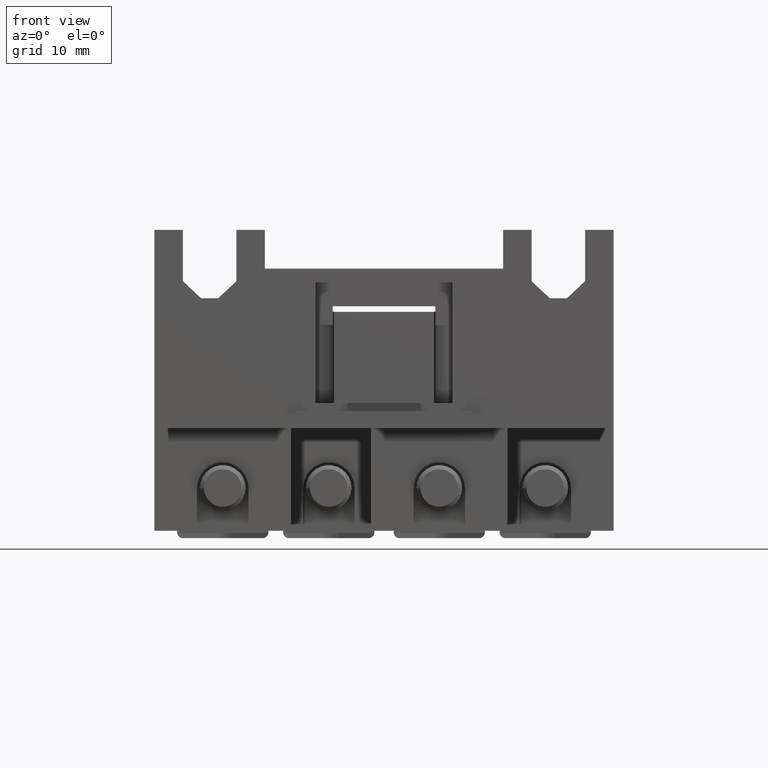
[diagram: clean part render]
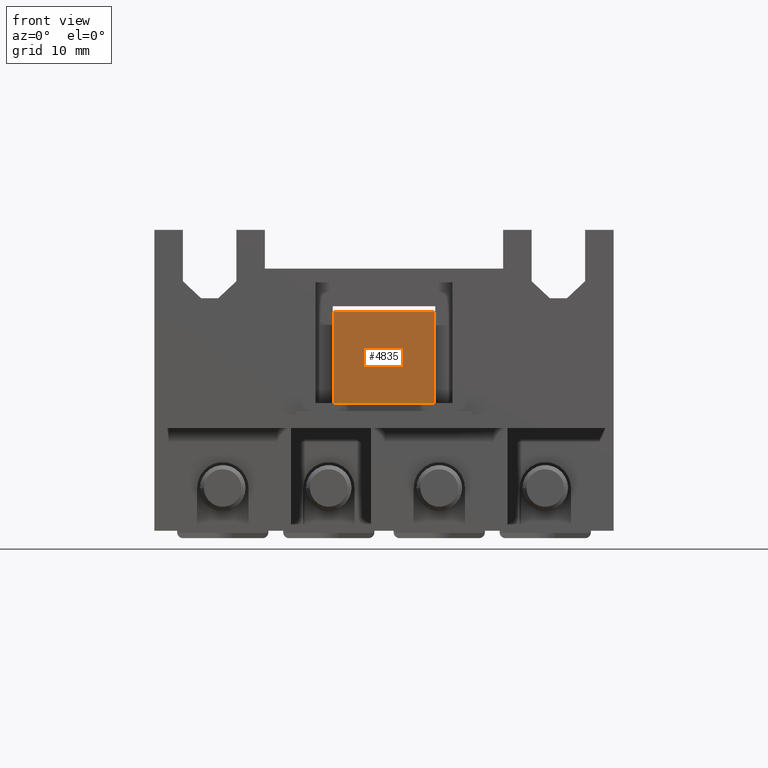
[diagram: same view with one face highlighted and labeled with its STEP entity id]
A machine part, front view. The second image highlights one B-rep face of the part: STEP entity #4835.
In plain terms, the highlighted planar face has unit normal (-0, 1, -0).
Its self-contained STEP definition (entity closure, byte-faithful):
#4726=CARTESIAN_POINT('',(-0.795593623395649,-4.039167884683144,0.0));
#4727=VERTEX_POINT('',#4726);
#4734=CARTESIAN_POINT('',(-0.795593623395650,3.960832115316857,0.0));
#4735=VERTEX_POINT('',#4734);
#4736=CARTESIAN_POINT('',(-0.795593623395650,3.960832115316857,0.0));
#4737=DIRECTION('',(0.0,-1.0,0.0));
#4738=VECTOR('',#4737,8.0);
#4739=LINE('',#4736,#4738);
#4740=EDGE_CURVE('',#4735,#4727,#4739,.T.);
#4756=CARTESIAN_POINT('',(-9.595593623395651,-4.039167884683145,0.0));
#4757=VERTEX_POINT('',#4756);
#4764=CARTESIAN_POINT('',(-0.795593623395649,-4.039167884683144,0.0));
#4765=DIRECTION('',(-1.0,0.0,0.0));
#4766=VECTOR('',#4765,8.800000000000001);
#4767=LINE('',#4764,#4766);
#4768=EDGE_CURVE('',#4727,#4757,#4767,.T.);
#4785=CARTESIAN_POINT('',(-9.595593623395651,3.960832115316857,0.0));
#4786=VERTEX_POINT('',#4785);
#4793=CARTESIAN_POINT('',(-9.595593623395651,-4.039167884683145,0.0));
#4794=DIRECTION('',(0.0,1.0,0.0));
#4795=VECTOR('',#4794,8.000000000000002);
#4796=LINE('',#4793,#4795);
#4797=EDGE_CURVE('',#4757,#4786,#4796,.T.);
#4809=CARTESIAN_POINT('',(-9.595593623395651,3.960832115316857,0.0));
#4810=DIRECTION('',(1.0,0.0,0.0));
#4811=VECTOR('',#4810,8.800000000000001);
#4812=LINE('',#4809,#4811);
#4813=EDGE_CURVE('',#4786,#4735,#4812,.T.);
#4824=CARTESIAN_POINT('',(-5.195593623395650,-0.039167884683143,0.0));
#4825=DIRECTION('',(0.0,0.0,1.0));
#4826=DIRECTION('',(1.0,0.0,0.0));
#4827=AXIS2_PLACEMENT_3D('',#4824,#4825,#4826);
#4828=PLANE('',#4827);
#4829=ORIENTED_EDGE('',*,*,#4813,.T.);
#4830=ORIENTED_EDGE('',*,*,#4740,.T.);
#4831=ORIENTED_EDGE('',*,*,#4768,.T.);
#4832=ORIENTED_EDGE('',*,*,#4797,.T.);
#4833=EDGE_LOOP('',(#4829,#4830,#4831,#4832));
#4834=FACE_OUTER_BOUND('',#4833,.T.);
#4835=ADVANCED_FACE('',(#4834),#4828,.F.);